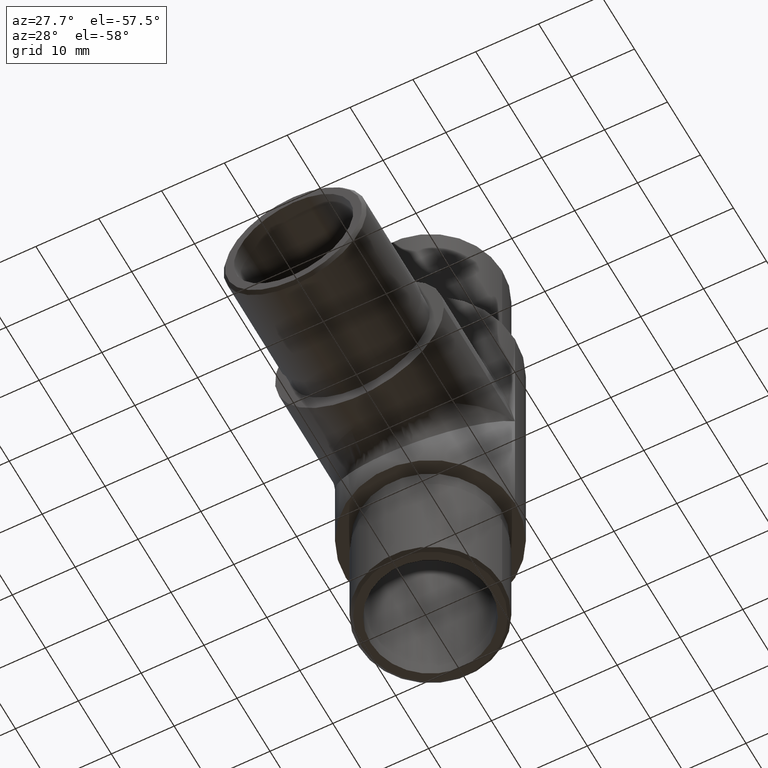
[diagram: clean part render]
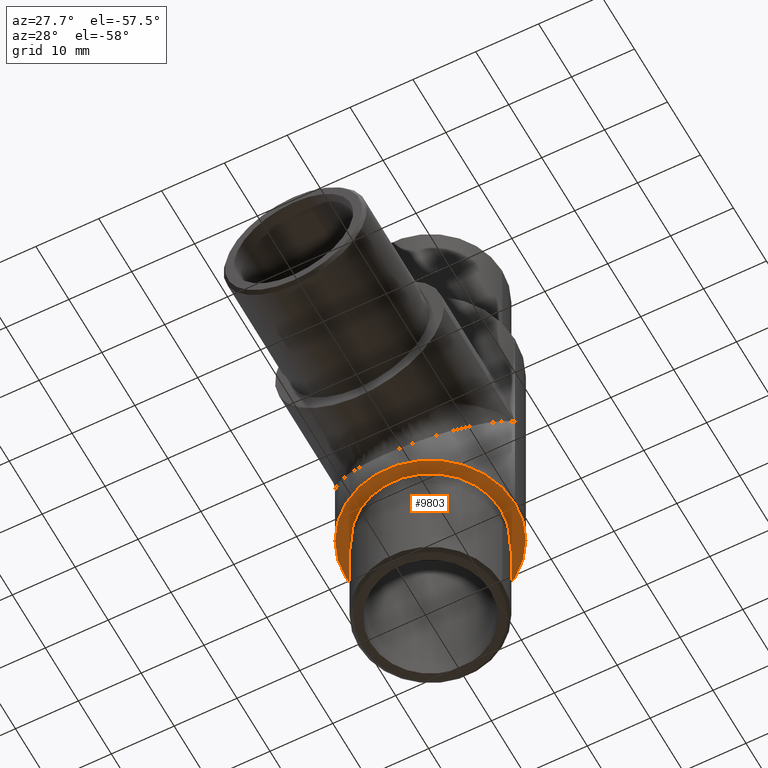
[diagram: same view with one face highlighted and labeled with its STEP entity id]
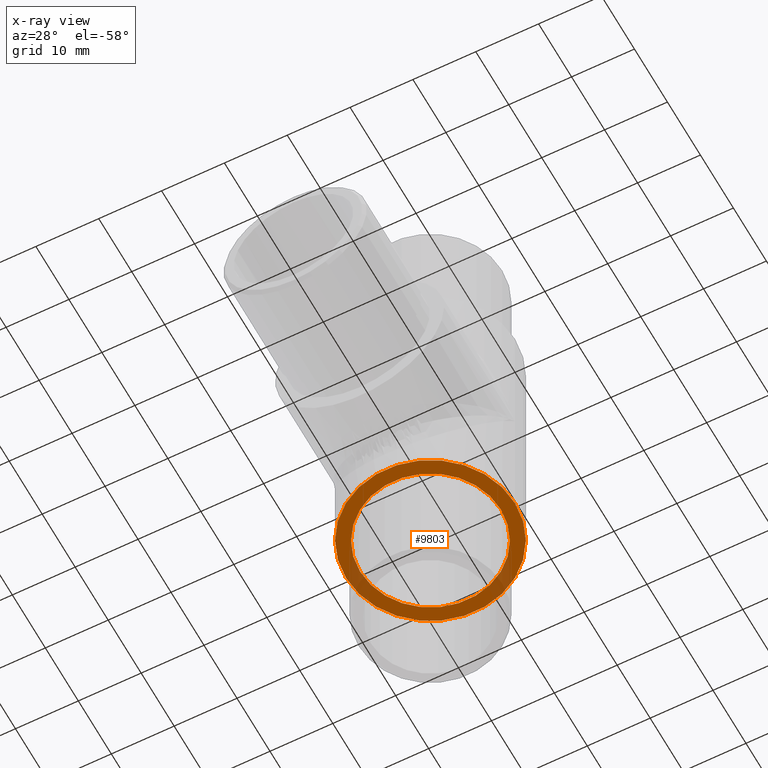
[diagram: x-ray of the same camera — body ghosted, the highlighted face saturated]
A machine part, auxiliary view. The second image highlights one B-rep face of the part: STEP entity #9803.
The next image is the same camera in x-ray: the body ghosted, the highlighted face saturated — about 13% of this face is hidden behind the body in this view.
In plain terms, the highlighted planar face has unit normal (0, 0, 1).
Its self-contained STEP definition (entity closure, byte-faithful):
#220 = DIRECTION ( 'NONE',  ( 0.0000000000000000000, 0.0000000000000000000, 1.000000000000000000 ) ) ;
#385 = CIRCLE ( 'NONE', #5546, 13.45000000000000100 ) ;
#4562 = DIRECTION ( 'NONE',  ( -0.0000000000000000000, -0.0000000000000000000, 1.000000000000000000 ) ) ;
#5030 = VERTEX_POINT ( 'NONE', #5133 ) ;
#5133 = CARTESIAN_POINT ( 'NONE',  ( 11.20000000000000100, 41.50000000000000000, -21.50000000000000000 ) ) ;
#5298 = AXIS2_PLACEMENT_3D ( 'NONE', #12275, #220, #6897 ) ;
#5532 = AXIS2_PLACEMENT_3D ( 'NONE', #11043, #4562, #13157 ) ;
#5546 = AXIS2_PLACEMENT_3D ( 'NONE', #11067, #6469, #7497 ) ;
#5580 = ORIENTED_EDGE ( 'NONE', *, *, #7168, .F. ) ;
#6280 = EDGE_LOOP ( 'NONE', ( #5580 ) ) ;
#6469 = DIRECTION ( 'NONE',  ( 0.0000000000000000000, 0.0000000000000000000, 1.000000000000000000 ) ) ;
#6644 = FACE_BOUND ( 'NONE', #11323, .T. ) ;
#6897 = DIRECTION ( 'NONE',  ( 1.000000000000000000, 0.0000000000000000000, -0.0000000000000000000 ) ) ;
#7168 = EDGE_CURVE ( 'NONE', #10827, #10827, #385, .T. ) ;
#7497 = DIRECTION ( 'NONE',  ( 1.000000000000000000, 0.0000000000000000000, 0.0000000000000000000 ) ) ;
#8261 = ORIENTED_EDGE ( 'NONE', *, *, #12579, .T. ) ;
#9803 = ADVANCED_FACE ( 'NONE', ( #6644, #10692 ), #11239, .F. ) ;
#10481 = CARTESIAN_POINT ( 'NONE',  ( 13.45000000000000100, 41.50000000000000000, -21.50000000000000000 ) ) ;
#10692 = FACE_OUTER_BOUND ( 'NONE', #6280, .T. ) ;
#10827 = VERTEX_POINT ( 'NONE', #10481 ) ;
#11043 = CARTESIAN_POINT ( 'NONE',  ( 0.0000000000000000000, 41.50000000000000000, -21.50000000000000000 ) ) ;
#11067 = CARTESIAN_POINT ( 'NONE',  ( 0.0000000000000000000, 41.50000000000000000, -21.50000000000000000 ) ) ;
#11239 = PLANE ( 'NONE',  #5298 ) ;
#11323 = EDGE_LOOP ( 'NONE', ( #8261 ) ) ;
#12275 = CARTESIAN_POINT ( 'NONE',  ( 0.0000000000000000000, 41.50000000000000000, -21.50000000000000000 ) ) ;
#12579 = EDGE_CURVE ( 'NONE', #5030, #5030, #13759, .T. ) ;
#13157 = DIRECTION ( 'NONE',  ( 1.000000000000000000, 0.0000000000000000000, 0.0000000000000000000 ) ) ;
#13759 = CIRCLE ( 'NONE', #5532, 11.20000000000000100 ) ;